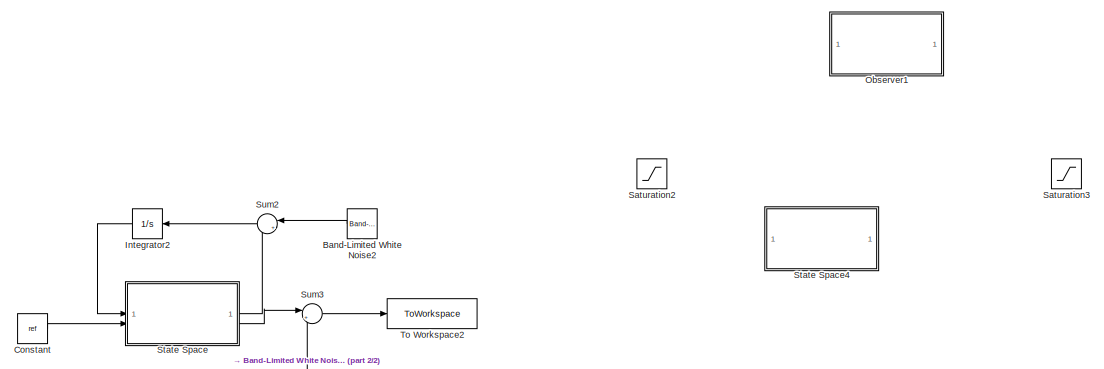
[diagram: root canvas - part 1/2, top center region]
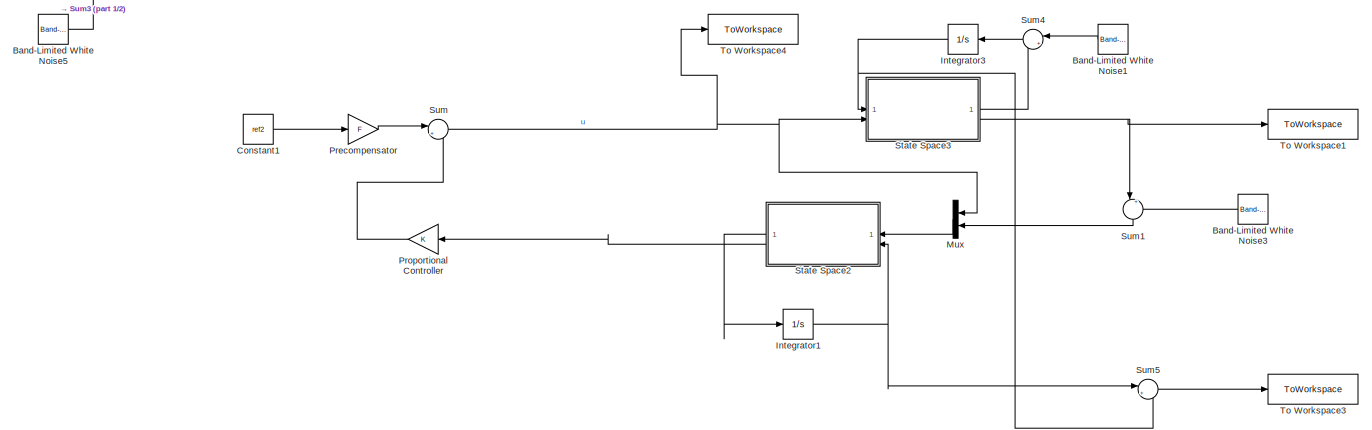
[diagram: root canvas - part 2/2, full width, bottom band]
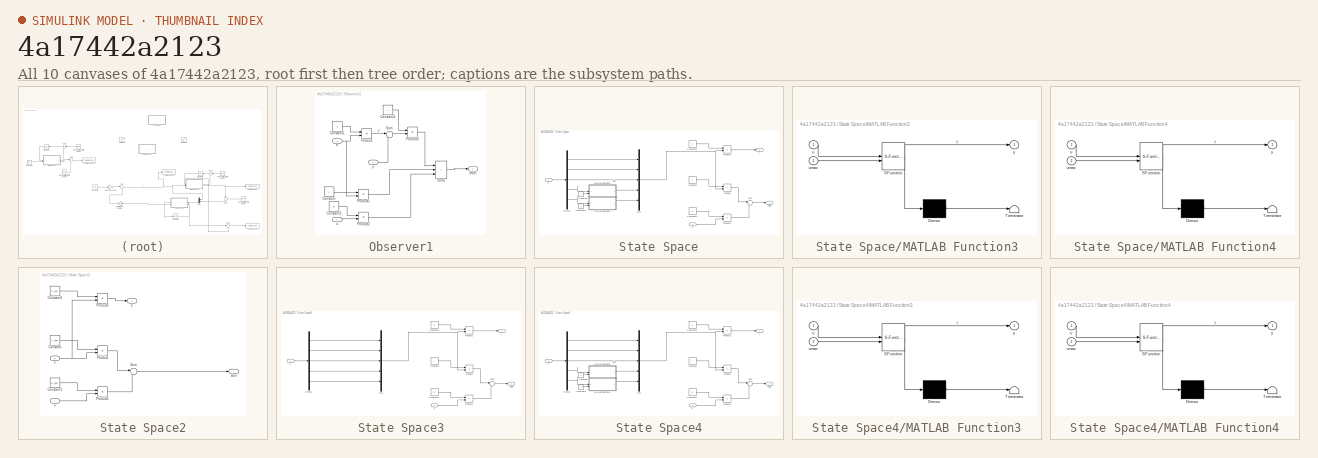
[diagram: thumbnail index - all 10 canvases of the model, root first then tree order]
MODEL slx_4a17442a2123
KIND model
CONFIG AbsTol = auto
CONFIG EnableMultiTasking = off
CONFIG FixedStep = auto
CONFIG MaxStep = auto
CONFIG MinStep = auto
CONFIG RelTol = 1e-3
CONFIG SampleTimeConstraint = Unconstrained
CONFIG SolverName = VariableStepAuto
CONFIG StartTime = 0.0
CONFIG StopTime = 50
BLOCK [Reference] Band-Limited White Noise1  REF=simulink/Sources/Band-Limited
White Noise
  NameLocation = top
  SourceBlock = simulink/Sources/Band-Limited\nWhite Noise
  SourceType = Band-Limited White Noise.
BLOCK [Reference] Band-Limited White Noise2  REF=simulink/Sources/Band-Limited
White Noise
  NameLocation = top
  SourceBlock = simulink/Sources/Band-Limited\nWhite Noise
  SourceType = Band-Limited White Noise.
BLOCK [Reference] Band-Limited White Noise3  REF=simulink/Sources/Band-Limited
White Noise
  NameLocation = top
  SourceBlock = simulink/Sources/Band-Limited\nWhite Noise
  SourceType = Band-Limited White Noise.
BLOCK [Reference] Band-Limited White Noise5  REF=simulink/Sources/Band-Limited
White Noise
  SourceBlock = simulink/Sources/Band-Limited\nWhite Noise
  SourceType = Band-Limited White Noise.
BLOCK [Constant] Constant
  Value = ref
BLOCK [Constant] Constant1
  Value = ref2
BLOCK [Integrator] Integrator1
  InitialCondition = x0
BLOCK [Integrator] Integrator2
  InitialCondition = x0
  NameLocation = top
BLOCK [Integrator] Integrator3
  InitialCondition = x0
  NameLocation = top
BLOCK [Mux] Mux
  DisplayOption = bar
  Inputs = 2
  NameLocation = top
BLOCK [SubSystem] Observer1
  Commented = on
  NameLocation = top
BLOCK [Constant] Observer1/Constant
  Value = A
BLOCK [Constant] Observer1/Constant1
  Value = C
BLOCK [Constant] Observer1/Constant2
  Value = L
BLOCK [Constant] Observer1/Constant3
  Value = B
BLOCK [Product] Observer1/Product
  Multiplication = Matrix(*)
BLOCK [Product] Observer1/Product1
  Multiplication = Matrix(*)
BLOCK [Product] Observer1/Product2
  Multiplication = Matrix(*)
BLOCK [Product] Observer1/Product3
  Multiplication = Matrix(*)
BLOCK [Sum] Observer1/Sum
  Inputs = |-+
BLOCK [Sum] Observer1/Sum1
  IconShape = rectangular
  Inputs = |+++
BLOCK [Inport] Observer1/u
BLOCK [Inport] Observer1/x^
  Port = 3
BLOCK [Outport] Observer1/x^dot
BLOCK [Inport] Observer1/y
  Port = 2
BLOCK [Gain] Precompensator
  Gain = F
  Multiplication = Matrix(K*u)
BLOCK [Gain] Proportional Controller
  Gain = K
  Multiplication = Matrix(K*u)
  NameLocation = top
BLOCK [Saturate] Saturation2
  Commented = on
  LowerLimit = 0
  UpperLimit = 10000
BLOCK [Saturate] Saturation3
  Commented = on
  LowerLimit = 0
  UpperLimit = 10000
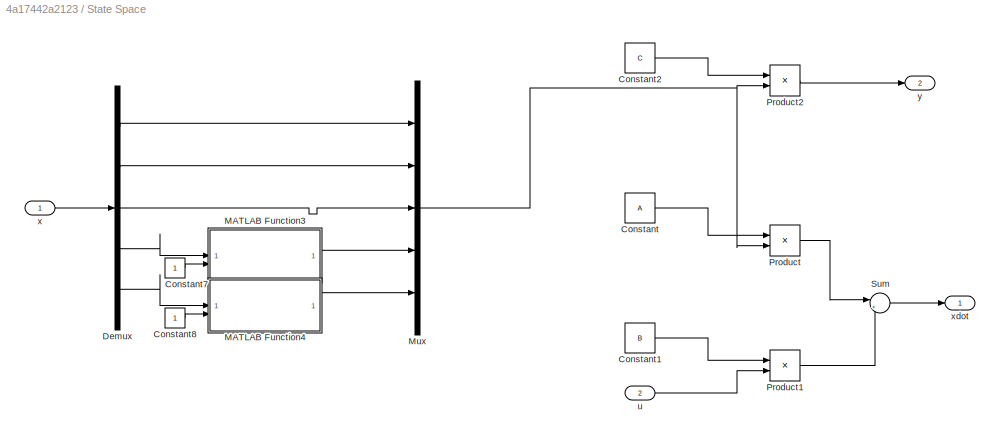
BLOCK [SubSystem] State Space
BLOCK [Constant] State Space/Constant
  Value = A
BLOCK [Constant] State Space/Constant1
  Value = B
BLOCK [Constant] State Space/Constant2
  Value = C
BLOCK [Constant] State Space/Constant7
BLOCK [Constant] State Space/Constant8
BLOCK [Demux] State Space/Demux
  Outputs = 5
BLOCK [SubSystem] State Space/MATLAB Function3
  ErrorFcn = Stateflow.Translate.translate
  PermitHierarchicalResolution = ExplicitOnly
  SFBlockType = MATLAB Function
  TreatAsAtomicUnit = on
BLOCK [Demux] State Space/MATLAB Function3/ Demux 
  Outputs = 1
BLOCK [S-Function] State Space/MATLAB Function3/ SFunction 
  EnableBusSupport = on
  FunctionName = sf_sfun
  PortCounts = [2 2]
  SFcnIsStateOwnerBlock = off
  SFunctionDeploymentMode = off
  Tag = Stateflow S-Function 4
BLOCK [Terminator] State Space/MATLAB Function3/ Terminator 
BLOCK [Inport] State Space/MATLAB Function3/u
BLOCK [Inport] State Space/MATLAB Function3/umax
  Port = 2
BLOCK [Outport] State Space/MATLAB Function3/y
BLOCK [SubSystem] State Space/MATLAB Function4
  ErrorFcn = Stateflow.Translate.translate
  PermitHierarchicalResolution = ExplicitOnly
  SFBlockType = MATLAB Function
  TreatAsAtomicUnit = on
BLOCK [Demux] State Space/MATLAB Function4/ Demux 
  Outputs = 1
BLOCK [S-Function] State Space/MATLAB Function4/ SFunction 
  EnableBusSupport = on
  FunctionName = sf_sfun
  PortCounts = [2 2]
  SFcnIsStateOwnerBlock = off
  SFunctionDeploymentMode = off
  Tag = Stateflow S-Function 5
BLOCK [Terminator] State Space/MATLAB Function4/ Terminator 
BLOCK [Inport] State Space/MATLAB Function4/u
BLOCK [Inport] State Space/MATLAB Function4/umax
  Port = 2
BLOCK [Outport] State Space/MATLAB Function4/y
BLOCK [Mux] State Space/Mux
  DisplayOption = bar
  Inputs = 5
BLOCK [Product] State Space/Product
  Multiplication = Matrix(*)
BLOCK [Product] State Space/Product1
  Multiplication = Matrix(*)
BLOCK [Product] State Space/Product2
  Multiplication = Matrix(*)
BLOCK [Sum] State Space/Sum
  Inputs = |++
BLOCK [Inport] State Space/u
  Port = 2
BLOCK [Inport] State Space/x
BLOCK [Outport] State Space/xdot
BLOCK [Outport] State Space/y
  Port = 2
BLOCK [SubSystem] State Space2
  NameLocation = top
BLOCK [Constant] State Space2/Constant
  Value = A_obs
BLOCK [Constant] State Space2/Constant1
  Value = B_obs
BLOCK [Constant] State Space2/Constant2
  Value = C_obs
BLOCK [Product] State Space2/Product
  Multiplication = Matrix(*)
BLOCK [Product] State Space2/Product1
  Multiplication = Matrix(*)
BLOCK [Product] State Space2/Product2
  Multiplication = Matrix(*)
BLOCK [Sum] State Space2/Sum
  Inputs = |++
BLOCK [Inport] State Space2/u
BLOCK [Inport] State Space2/x
  Port = 2
BLOCK [Outport] State Space2/xdot
BLOCK [Outport] State Space2/y
  Port = 2
BLOCK [SubSystem] State Space3
BLOCK [Constant] State Space3/Constant
  Value = A
BLOCK [Constant] State Space3/Constant1
  Value = B
BLOCK [Constant] State Space3/Constant2
  Value = C
BLOCK [Demux] State Space3/Demux
  Outputs = 5
BLOCK [Mux] State Space3/Mux
  DisplayOption = bar
  Inputs = 5
BLOCK [Product] State Space3/Product
  Multiplication = Matrix(*)
BLOCK [Product] State Space3/Product1
  Multiplication = Matrix(*)
BLOCK [Product] State Space3/Product2
  Multiplication = Matrix(*)
BLOCK [Sum] State Space3/Sum
  Inputs = |++
BLOCK [Inport] State Space3/u
  Port = 2
BLOCK [Inport] State Space3/x
BLOCK [Outport] State Space3/xdot
BLOCK [Outport] State Space3/y
  Port = 2
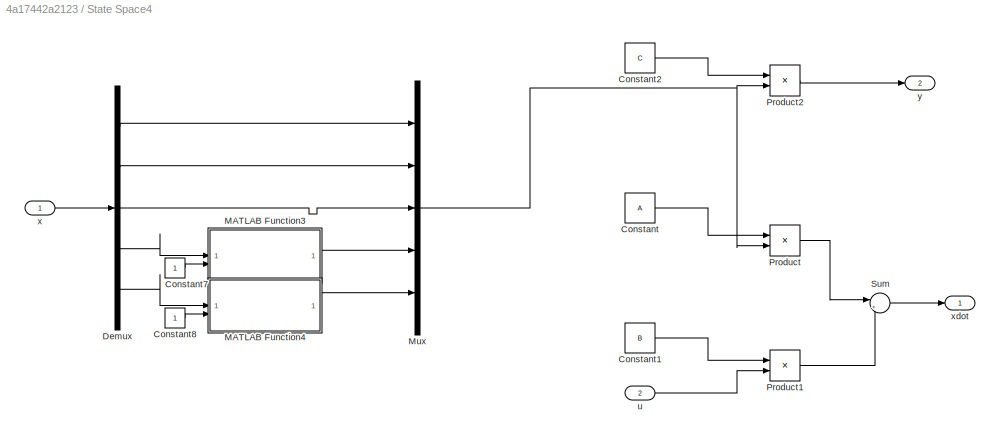
BLOCK [SubSystem] State Space4
  Commented = on
BLOCK [Constant] State Space4/Constant
  Value = A
BLOCK [Constant] State Space4/Constant1
  Value = B
BLOCK [Constant] State Space4/Constant2
  Value = C
BLOCK [Constant] State Space4/Constant7
BLOCK [Constant] State Space4/Constant8
BLOCK [Demux] State Space4/Demux
  Outputs = 5
BLOCK [SubSystem] State Space4/MATLAB Function3
  ErrorFcn = Stateflow.Translate.translate
  PermitHierarchicalResolution = ExplicitOnly
  SFBlockType = MATLAB Function
  TreatAsAtomicUnit = on
BLOCK [Demux] State Space4/MATLAB Function3/ Demux 
  Outputs = 1
BLOCK [S-Function] State Space4/MATLAB Function3/ SFunction 
  EnableBusSupport = on
  FunctionName = sf_sfun
  PortCounts = [2 2]
  SFcnIsStateOwnerBlock = off
  SFunctionDeploymentMode = off
  Tag = Stateflow S-Function 3
BLOCK [Terminator] State Space4/MATLAB Function3/ Terminator 
BLOCK [Inport] State Space4/MATLAB Function3/u
BLOCK [Inport] State Space4/MATLAB Function3/umax
  Port = 2
BLOCK [Outport] State Space4/MATLAB Function3/y
BLOCK [SubSystem] State Space4/MATLAB Function4
  ErrorFcn = Stateflow.Translate.translate
  PermitHierarchicalResolution = ExplicitOnly
  SFBlockType = MATLAB Function
  TreatAsAtomicUnit = on
BLOCK [Demux] State Space4/MATLAB Function4/ Demux 
  Outputs = 1
BLOCK [S-Function] State Space4/MATLAB Function4/ SFunction 
  EnableBusSupport = on
  FunctionName = sf_sfun
  PortCounts = [2 2]
  SFcnIsStateOwnerBlock = off
  SFunctionDeploymentMode = off
  Tag = Stateflow S-Function 6
BLOCK [Terminator] State Space4/MATLAB Function4/ Terminator 
BLOCK [Inport] State Space4/MATLAB Function4/u
BLOCK [Inport] State Space4/MATLAB Function4/umax
  Port = 2
BLOCK [Outport] State Space4/MATLAB Function4/y
BLOCK [Mux] State Space4/Mux
  DisplayOption = bar
  Inputs = 5
BLOCK [Product] State Space4/Product
  Multiplication = Matrix(*)
BLOCK [Product] State Space4/Product1
  Multiplication = Matrix(*)
BLOCK [Product] State Space4/Product2
  Multiplication = Matrix(*)
BLOCK [Sum] State Space4/Sum
  Inputs = |++
BLOCK [Inport] State Space4/u
  Port = 2
BLOCK [Inport] State Space4/x
BLOCK [Outport] State Space4/xdot
BLOCK [Outport] State Space4/y
  Port = 2
BLOCK [Sum] Sum
  Inputs = |+-
BLOCK [Sum] Sum1
  Inputs = |++
  NameLocation = left
BLOCK [Sum] Sum2
  Inputs = |++
  NameLocation = top
BLOCK [Sum] Sum3
  Inputs = |++
BLOCK [Sum] Sum4
  Inputs = |++
  NameLocation = top
BLOCK [Sum] Sum5
  Inputs = |+-
BLOCK [ToWorkspace] To Workspace1
  FixptAsFi = on
  MaxDataPoints = inf
  SampleTime = -1
  SaveFormat = Structure With Time
  VariableName = controlled
BLOCK [ToWorkspace] To Workspace2
  FixptAsFi = on
  MaxDataPoints = inf
  SampleTime = -1
  SaveFormat = Structure With Time
  VariableName = uncontrolled2
BLOCK [ToWorkspace] To Workspace3
  FixptAsFi = on
  MaxDataPoints = inf
  SampleTime = -1
  SaveFormat = Structure With Time
  VariableName = estimator_error
BLOCK [ToWorkspace] To Workspace4
  FixptAsFi = on
  MaxDataPoints = inf
  SampleTime = -1
  SaveFormat = Structure With Time
  VariableName = control_input
LINE Band-Limited White Noise1:1 -> Sum4:1
LINE Band-Limited White Noise2:1 -> Sum2:1
LINE Band-Limited White Noise3:1 -> Sum1:2
LINE Band-Limited White Noise5:1 -> Sum3:2
LINE Constant1:1 -> Precompensator:1
LINE Constant:1 -> State Space:2
NET Integrator1:1 -> State Space2:2, Sum5:1
LINE Integrator2:1 -> State Space:1
NET Integrator3:1 -> State Space3:1, Sum5:2
LINE Mux:1 -> State Space2:1
LINE Observer1/Constant1:1 -> Observer1/Product:1
LINE Observer1/Constant2:1 -> Observer1/Product3:1
LINE Observer1/Constant3:1 -> Observer1/Product2:1
LINE Observer1/Constant:1 -> Observer1/Product1:1
LINE Observer1/Product1:1 -> Observer1/Sum1:2
LINE Observer1/Product2:1 -> Observer1/Sum1:3
LINE Observer1/Product3:1 -> Observer1/Sum1:1
LINE Observer1/Product:1 -> Observer1/Sum:1
LINE Observer1/Sum1:1 -> Observer1/x^dot:1
LINE Observer1/Sum:1 -> Observer1/Product3:2
LINE Observer1/u:1 -> Observer1/Product2:2
NET Observer1/x^:1 -> Observer1/Product1:2, Observer1/Product:2
LINE Observer1/y:1 -> Observer1/Sum:2
LINE Precompensator:1 -> Sum:1
LINE Proportional Controller:1 -> Sum:2
LINE State Space/Constant1:1 -> State Space/Product1:1
LINE State Space/Constant2:1 -> State Space/Product2:1
LINE State Space/Constant7:1 -> State Space/MATLAB Function3:2
LINE State Space/Constant8:1 -> State Space/MATLAB Function4:2
LINE State Space/Constant:1 -> State Space/Product:1
LINE State Space/Demux:1 -> State Space/Mux:1
LINE State Space/Demux:2 -> State Space/Mux:2
LINE State Space/Demux:3 -> State Space/Mux:3
LINE State Space/Demux:4 -> State Space/MATLAB Function3:1
LINE State Space/Demux:5 -> State Space/MATLAB Function4:1
LINE State Space/MATLAB Function3:1 -> State Space/Mux:4
LINE State Space/MATLAB Function4:1 -> State Space/Mux:5
NET State Space/Mux:1 -> State Space/Product2:2, State Space/Product:2
LINE State Space/Product1:1 -> State Space/Sum:2
LINE State Space/Product2:1 -> State Space/y:1
LINE State Space/Product:1 -> State Space/Sum:1
LINE State Space/Sum:1 -> State Space/xdot:1
LINE State Space/u:1 -> State Space/Product1:2
LINE State Space/x:1 -> State Space/Demux:1
LINE State Space2/Constant1:1 -> State Space2/Product1:1
LINE State Space2/Constant2:1 -> State Space2/Product2:1
LINE State Space2/Constant:1 -> State Space2/Product:1
LINE State Space2/Product1:1 -> State Space2/Sum:2
LINE State Space2/Product2:1 -> State Space2/y:1
LINE State Space2/Product:1 -> State Space2/Sum:1
LINE State Space2/Sum:1 -> State Space2/xdot:1
LINE State Space2/u:1 -> State Space2/Product1:2
NET State Space2/x:1 -> State Space2/Product2:2, State Space2/Product:2
LINE State Space2:1 -> Integrator1:1
LINE State Space2:2 -> Proportional Controller:1
LINE State Space3/Constant1:1 -> State Space3/Product1:1
LINE State Space3/Constant2:1 -> State Space3/Product2:1
LINE State Space3/Constant:1 -> State Space3/Product:1
LINE State Space3/Demux:1 -> State Space3/Mux:1
LINE State Space3/Demux:2 -> State Space3/Mux:2
LINE State Space3/Demux:3 -> State Space3/Mux:3
LINE State Space3/Demux:4 -> State Space3/Mux:4
LINE State Space3/Demux:5 -> State Space3/Mux:5
NET State Space3/Mux:1 -> State Space3/Product2:2, State Space3/Product:2
LINE State Space3/Product1:1 -> State Space3/Sum:2
LINE State Space3/Product2:1 -> State Space3/y:1
LINE State Space3/Product:1 -> State Space3/Sum:1
LINE State Space3/Sum:1 -> State Space3/xdot:1
LINE State Space3/u:1 -> State Space3/Product1:2
LINE State Space3/x:1 -> State Space3/Demux:1
LINE State Space3:1 -> Sum4:2
NET State Space3:2 -> Sum1:1, To Workspace1:1
LINE State Space4/Constant1:1 -> State Space4/Product1:1
LINE State Space4/Constant2:1 -> State Space4/Product2:1
LINE State Space4/Constant7:1 -> State Space4/MATLAB Function3:2
LINE State Space4/Constant8:1 -> State Space4/MATLAB Function4:2
LINE State Space4/Constant:1 -> State Space4/Product:1
LINE State Space4/Demux:1 -> State Space4/Mux:1
LINE State Space4/Demux:2 -> State Space4/Mux:2
LINE State Space4/Demux:3 -> State Space4/Mux:3
LINE State Space4/Demux:4 -> State Space4/MATLAB Function3:1
LINE State Space4/Demux:5 -> State Space4/MATLAB Function4:1
LINE State Space4/MATLAB Function3:1 -> State Space4/Mux:4
LINE State Space4/MATLAB Function4:1 -> State Space4/Mux:5
NET State Space4/Mux:1 -> State Space4/Product2:2, State Space4/Product:2
LINE State Space4/Product1:1 -> State Space4/Sum:2
LINE State Space4/Product2:1 -> State Space4/y:1
LINE State Space4/Product:1 -> State Space4/Sum:1
LINE State Space4/Sum:1 -> State Space4/xdot:1
LINE State Space4/u:1 -> State Space4/Product1:2
LINE State Space4/x:1 -> State Space4/Demux:1
LINE State Space:1 -> Sum2:2
LINE State Space:2 -> Sum3:1
LINE Sum1:1 -> Mux:2
LINE Sum2:1 -> Integrator2:1
LINE Sum3:1 -> To Workspace2:1
LINE Sum4:1 -> Integrator3:1
LINE Sum5:1 -> To Workspace3:1
NET Sum:1 -> Mux:1, State Space3:2, To Workspace4:1
note: NET lines group one-source signal fan-out (src -> all destinations, sorted); 1:1 wires keep LINE
CHART State Space4/MATLAB Function3 states=1 transitions=1
  STATE_LABEL 'eML_blk_kernel()'
  STATE_LABEL 'SCRIPT:\nfunction y = smoothSat(u, umax)\n% Smooth saturation using tanh\n% u   = input\n% umin, umax = lower/upper saturation limits\n% k   = sharpness (typical values: 1 to 10)\numin = 0;\nk = 5;\nu_center = (umax + umin) / 2;\nu_half   = (umax - umin) / 2;\ny = u_center + u_half * tanh(k * (u - u_center) / u_half);\nend'  <repeated x4 — deduplicated; at blocks: MATLAB Function3, MATLAB Function4>
CHART State Space/MATLAB Function3 states=1 transitions=1
  STATE_LABEL 'eML_blk_kernel()'
CHART State Space/MATLAB Function4 states=1 transitions=1
  STATE_LABEL 'eML_blk_kernel()'
CHART State Space4/MATLAB Function4 states=1 transitions=1
  STATE_LABEL 'eML_blk_kernel()'
CHART  states=0 transitions=0
CHART  states=0 transitions=0
CHART  states=0 transitions=0
CHART  states=0 transitions=0
